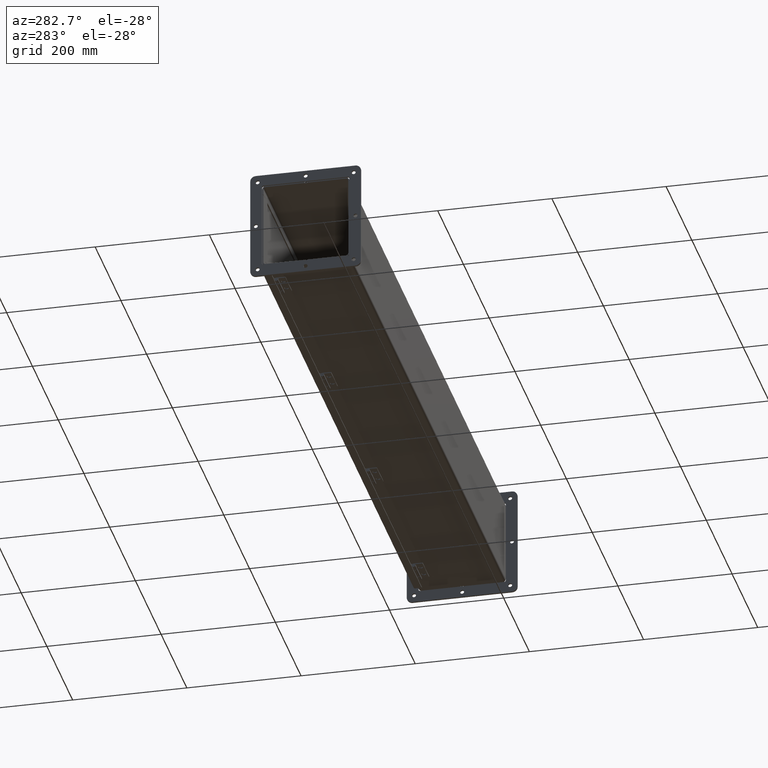
[diagram: clean part render]
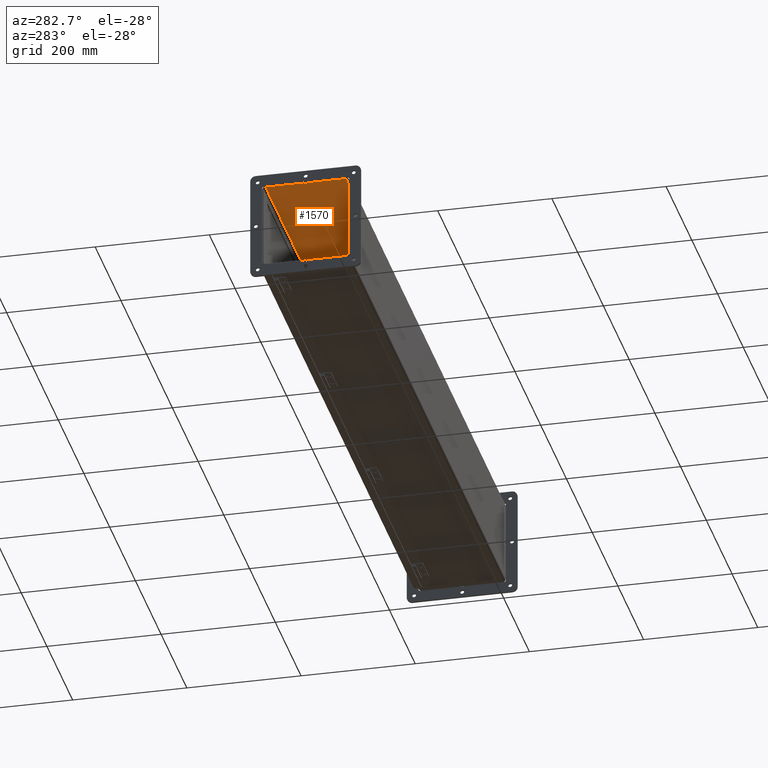
[diagram: same view with one face highlighted and labeled with its STEP entity id]
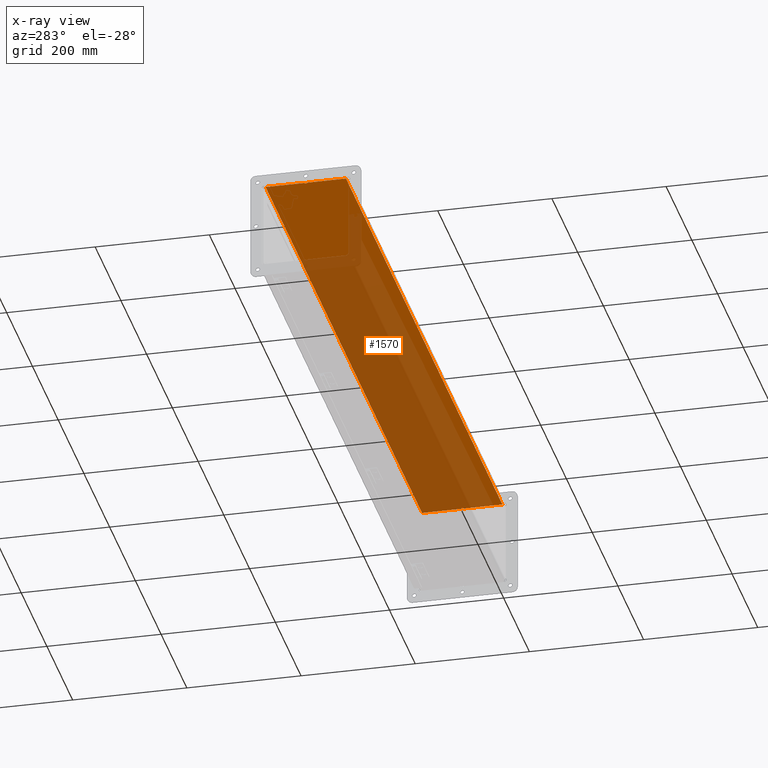
[diagram: x-ray of the same camera — body ghosted, the highlighted face saturated]
A machine part, auxiliary view. The second image highlights one B-rep face of the part: STEP entity #1570.
The next image is the same camera in x-ray: the body ghosted, the highlighted face saturated — about 69% of this face is hidden behind the body in this view.
In plain terms, the highlighted planar face has unit normal (0, -0, -1).
Its self-contained STEP definition (entity closure, byte-faithful):
#470=CARTESIAN_POINT('',(0.0,0.073999999999999,2.906250000000004));
#471=VERTEX_POINT('',#470);
#478=CARTESIAN_POINT('',(0.0,0.073999999999999,0.23025));
#479=VERTEX_POINT('',#478);
#480=CARTESIAN_POINT('',(0.0,0.073999999999999,2.906250000000004));
#481=DIRECTION('',(0.0,0.0,-1.0));
#482=VECTOR('',#481,2.676000000000004);
#483=LINE('',#480,#482);
#484=EDGE_CURVE('',#471,#479,#483,.T.);
#542=CARTESIAN_POINT('',(0.062500000000001,0.073999999999999,3.093750000000005));
#543=VERTEX_POINT('',#542);
#544=CARTESIAN_POINT('',(0.0,0.073999999999999,3.093750000000004));
#545=VERTEX_POINT('',#544);
#546=CARTESIAN_POINT('',(0.062500000000004,0.073999999999999,3.093750000000005));
#547=DIRECTION('',(-1.0,0.0,0.0));
#548=VECTOR('',#547,0.062500000000004);
#549=LINE('',#546,#548);
#550=EDGE_CURVE('',#543,#545,#549,.T.);
#644=CARTESIAN_POINT('',(0.062500000000001,0.073999999999999,2.906250000000005));
#645=VERTEX_POINT('',#644);
#646=CARTESIAN_POINT('',(0.062500000000002,0.073999999999999,2.906250000000005));
#647=DIRECTION('',(0.0,0.0,1.0));
#648=VECTOR('',#647,0.1875);
#649=LINE('',#646,#648);
#650=EDGE_CURVE('',#645,#543,#649,.T.);
#675=CARTESIAN_POINT('',(0.0,0.073999999999999,2.906250000000005));
#676=DIRECTION('',(1.0,0.0,0.0));
#677=VECTOR('',#676,0.062500000000002);
#678=LINE('',#675,#677);
#679=EDGE_CURVE('',#471,#645,#678,.T.);
#707=CARTESIAN_POINT('',(47.812500000000014,0.073999999999999,3.093749999999994));
#708=VERTEX_POINT('',#707);
#715=CARTESIAN_POINT('',(47.875000000000014,0.073999999999999,3.093749999999994));
#716=VERTEX_POINT('',#715);
#717=CARTESIAN_POINT('',(47.875000000000007,0.073999999999999,3.093749999999994));
#718=DIRECTION('',(-1.0,0.0,0.0));
#719=VECTOR('',#718,0.062499999999993);
#720=LINE('',#717,#719);
#721=EDGE_CURVE('',#716,#708,#720,.T.);
#785=CARTESIAN_POINT('',(47.812500000000014,0.073999999999999,2.906250000000028));
#786=VERTEX_POINT('',#785);
#793=CARTESIAN_POINT('',(47.812500000000014,0.073999999999999,3.093749999999993));
#794=DIRECTION('',(0.0,0.0,-1.0));
#795=VECTOR('',#794,0.187499999999966);
#796=LINE('',#793,#795);
#797=EDGE_CURVE('',#708,#786,#796,.T.);
#816=CARTESIAN_POINT('',(47.875000000000007,0.073999999999999,2.906250000000028));
#817=VERTEX_POINT('',#816);
#824=CARTESIAN_POINT('',(47.812500000000014,0.073999999999999,2.906250000000028));
#825=DIRECTION('',(1.0,0.0,0.0));
#826=VECTOR('',#825,0.062499999999986);
#827=LINE('',#824,#826);
#828=EDGE_CURVE('',#786,#817,#827,.T.);
#1095=CARTESIAN_POINT('',(47.875000000000007,0.073999999999999,5.76975));
#1096=VERTEX_POINT('',#1095);
#1097=CARTESIAN_POINT('',(47.875000000000007,0.073999999999998,5.76975));
#1098=DIRECTION('',(0.0,0.0,-1.0));
#1099=VECTOR('',#1098,2.676000000000007);
#1100=LINE('',#1097,#1099);
#1101=EDGE_CURVE('',#1096,#716,#1100,.T.);
#1154=CARTESIAN_POINT('',(47.875000000000007,0.073999999999999,0.23025));
#1155=VERTEX_POINT('',#1154);
#1163=CARTESIAN_POINT('',(47.875000000000007,0.073999999999999,2.906250000000028));
#1164=DIRECTION('',(0.0,0.0,-1.0));
#1165=VECTOR('',#1164,2.676000000000028);
#1166=LINE('',#1163,#1165);
#1167=EDGE_CURVE('',#817,#1155,#1166,.T.);
#1411=CARTESIAN_POINT('',(0.0,0.073999999999999,5.76975));
#1412=VERTEX_POINT('',#1411);
#1420=CARTESIAN_POINT('',(0.0,0.073999999999998,5.76975));
#1421=DIRECTION('',(0.0,0.0,-1.0));
#1422=VECTOR('',#1421,2.675999999999996);
#1423=LINE('',#1420,#1422);
#1424=EDGE_CURVE('',#1412,#545,#1423,.T.);
#1465=CARTESIAN_POINT('',(0.0,0.073999999999999,5.76975));
#1466=DIRECTION('',(1.0,0.0,0.0));
#1467=VECTOR('',#1466,47.875);
#1468=LINE('',#1465,#1467);
#1469=EDGE_CURVE('',#1412,#1096,#1468,.T.);
#1546=CARTESIAN_POINT('',(23.937500000000007,0.073999999999999,2.966833972768929));
#1547=DIRECTION('',(0.0,1.0,0.0));
#1548=DIRECTION('',(1.0,0.0,0.0));
#1549=AXIS2_PLACEMENT_3D('',#1546,#1547,#1548);
#1550=PLANE('',#1549);
#1551=ORIENTED_EDGE('',*,*,#550,.T.);
#1552=ORIENTED_EDGE('',*,*,#1424,.F.);
#1553=ORIENTED_EDGE('',*,*,#1469,.T.);
#1554=ORIENTED_EDGE('',*,*,#1101,.T.);
#1555=ORIENTED_EDGE('',*,*,#721,.T.);
#1556=ORIENTED_EDGE('',*,*,#797,.T.);
#1557=ORIENTED_EDGE('',*,*,#828,.T.);
#1558=ORIENTED_EDGE('',*,*,#1167,.T.);
#1559=CARTESIAN_POINT('',(47.875000000000007,0.073999999999999,0.23025));
#1560=DIRECTION('',(-1.0,0.0,0.0));
#1561=VECTOR('',#1560,47.875000000000007);
#1562=LINE('',#1559,#1561);
#1563=EDGE_CURVE('',#1155,#479,#1562,.T.);
#1564=ORIENTED_EDGE('',*,*,#1563,.T.);
#1565=ORIENTED_EDGE('',*,*,#484,.F.);
#1566=ORIENTED_EDGE('',*,*,#679,.T.);
#1567=ORIENTED_EDGE('',*,*,#650,.T.);
#1568=EDGE_LOOP('',(#1551,#1552,#1553,#1554,#1555,#1556,#1557,#1558,#1564,#1565,#1566,#1567));
#1569=FACE_OUTER_BOUND('',#1568,.T.);
#1570=ADVANCED_FACE('',(#1569),#1550,.T.);